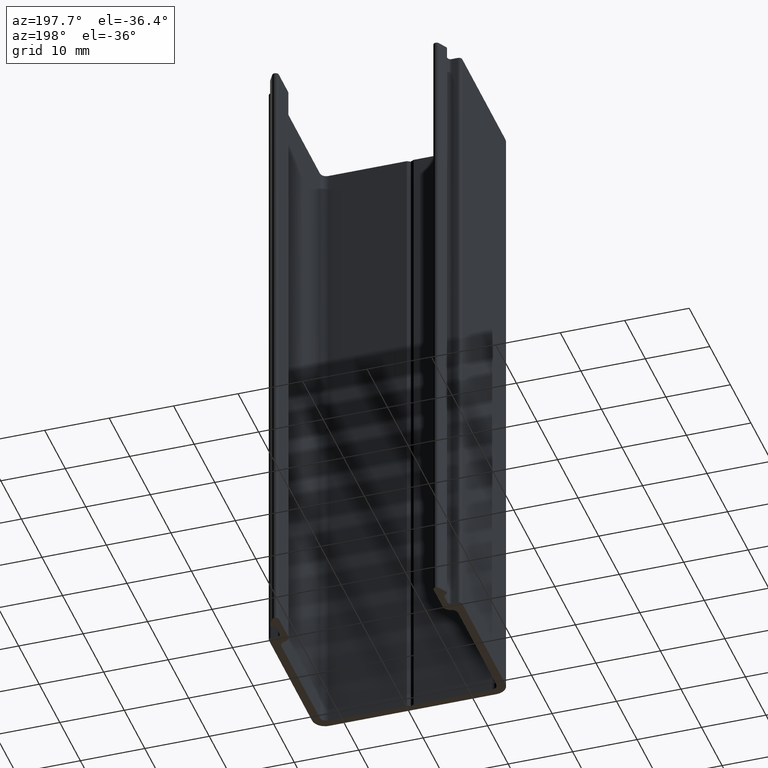
[diagram: clean part render]
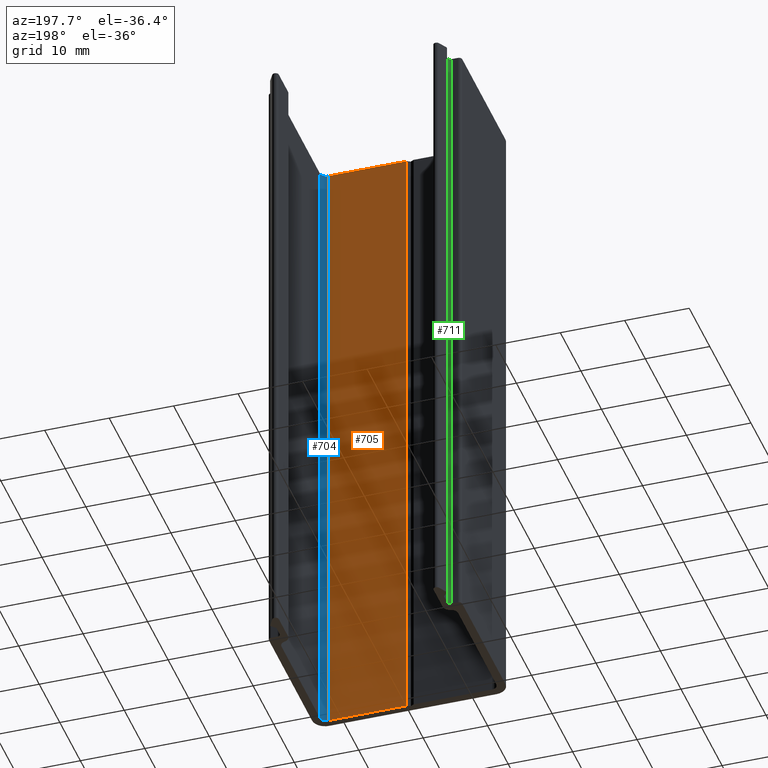
[diagram: same view with three faces highlighted in distinct colors, each labeled with its STEP entity id]
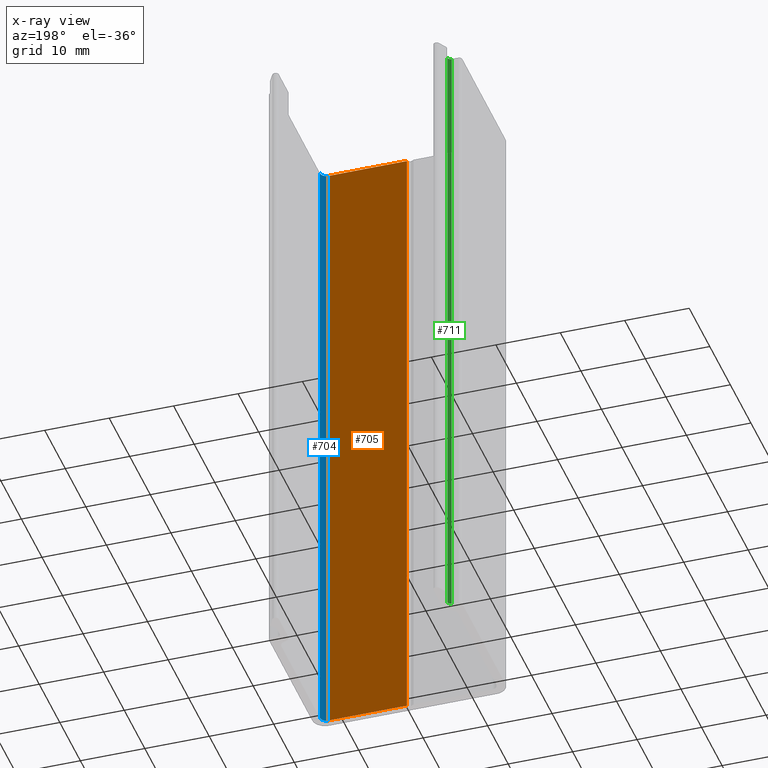
[diagram: x-ray of the same camera — body ghosted, the three highlighted faces saturated]
A machine part, auxiliary view with three faces highlighted in distinct colors.
The next image is the same camera in x-ray (body ghosted, the three faces saturated) — at least one of them is partly hidden behind the body in this view.
Their STEP definitions:

[orange] entity #705 — the highlighted planar face has unit normal (0, 1, 0).
#79=FACE_OUTER_BOUND('',#116,.T.);
#116=EDGE_LOOP('',(#522,#523,#524,#525));
#169=LINE('',#1109,#242);
#170=LINE('',#1112,#243);
#171=LINE('',#1114,#244);
#172=LINE('',#1115,#245);
#242=VECTOR('',#895,100.);
#243=VECTOR('',#898,12.1798805522346);
#244=VECTOR('',#899,12.1798805522346);
#245=VECTOR('',#900,100.);
#315=VERTEX_POINT('',#1105);
#316=VERTEX_POINT('',#1107);
#317=VERTEX_POINT('',#1111);
#318=VERTEX_POINT('',#1113);
#401=EDGE_CURVE('',#315,#316,#169,.T.);
#402=EDGE_CURVE('',#315,#317,#170,.T.);
#403=EDGE_CURVE('',#318,#316,#171,.T.);
#404=EDGE_CURVE('',#317,#318,#172,.T.);
#522=ORIENTED_EDGE('',*,*,#402,.F.);
#523=ORIENTED_EDGE('',*,*,#401,.T.);
#524=ORIENTED_EDGE('',*,*,#403,.F.);
#525=ORIENTED_EDGE('',*,*,#404,.F.);
#676=PLANE('',#760);
#705=ADVANCED_FACE('',(#79),#676,.T.);
#760=AXIS2_PLACEMENT_3D('',#1110,#896,#897);
#895=DIRECTION('',(0.,0.,-1.));
#896=DIRECTION('center_axis',(5.83374141242904E-14,1.,0.));
#897=DIRECTION('ref_axis',(-1.,5.82645043323282E-14,0.));
#898=DIRECTION('',(-1.,5.83374141242904E-14,0.));
#899=DIRECTION('',(1.,-5.83374141242904E-14,0.));
#900=DIRECTION('',(0.,0.,-1.));
#1105=CARTESIAN_POINT('',(12.699689254774,-13.7006513243402,100.));
#1107=CARTESIAN_POINT('',(12.699689254774,-13.7006513243402,0.));
#1109=CARTESIAN_POINT('',(12.699689254774,-13.7006513243402,0.));
#1110=CARTESIAN_POINT('Origin',(12.699689254774,-13.7006513243402,0.));
#1111=CARTESIAN_POINT('',(0.519808702539413,-13.7006513243395,100.));
#1112=CARTESIAN_POINT('',(6.3498446273866,-13.7006513243398,100.));
#1113=CARTESIAN_POINT('',(0.519808702539413,-13.7006513243395,0.));
#1114=CARTESIAN_POINT('',(6.3498446273866,-13.7006513243398,0.));
#1115=CARTESIAN_POINT('',(0.519808702539413,-13.7006513243395,0.));

[blue] entity #704 — the highlighted cylindrical surface (edge-blend (fillet) strip) has radius 1 mm, axis along (0, 0, 1).
#29=CIRCLE('',#758,1.00000000000018);
#30=CIRCLE('',#759,1.00000000000018);
#54=CYLINDRICAL_SURFACE('',#757,1.00000000000018);
#78=FACE_OUTER_BOUND('',#115,.T.);
#115=EDGE_LOOP('',(#518,#519,#520,#521));
#168=LINE('',#1103,#241);
#169=LINE('',#1109,#242);
#241=VECTOR('',#888,100.);
#242=VECTOR('',#895,100.);
#313=VERTEX_POINT('',#1099);
#314=VERTEX_POINT('',#1101);
#315=VERTEX_POINT('',#1105);
#316=VERTEX_POINT('',#1107);
#398=EDGE_CURVE('',#313,#314,#168,.T.);
#399=EDGE_CURVE('',#313,#315,#29,.T.);
#400=EDGE_CURVE('',#316,#314,#30,.T.);
#401=EDGE_CURVE('',#315,#316,#169,.T.);
#518=ORIENTED_EDGE('',*,*,#399,.F.);
#519=ORIENTED_EDGE('',*,*,#398,.T.);
#520=ORIENTED_EDGE('',*,*,#400,.F.);
#521=ORIENTED_EDGE('',*,*,#401,.F.);
#704=ADVANCED_FACE('',(#78),#54,.F.);
#757=AXIS2_PLACEMENT_3D('',#1104,#889,#890);
#758=AXIS2_PLACEMENT_3D('',#1106,#891,#892);
#759=AXIS2_PLACEMENT_3D('',#1108,#893,#894);
#888=DIRECTION('',(0.,0.,-1.));
#889=DIRECTION('center_axis',(0.,0.,1.));
#890=DIRECTION('ref_axis',(-5.77315972804976E-14,-1.,0.));
#891=DIRECTION('center_axis',(0.,0.,-1.));
#892=DIRECTION('ref_axis',(-5.77315972804976E-14,-1.,0.));
#893=DIRECTION('center_axis',(0.,0.,1.));
#894=DIRECTION('ref_axis',(-5.77315972804976E-14,-1.,0.));
#895=DIRECTION('',(0.,0.,-1.));
#1099=CARTESIAN_POINT('',(13.6996892547742,-12.7006513243401,100.));
#1101=CARTESIAN_POINT('',(13.6996892547742,-12.7006513243401,0.));
#1103=CARTESIAN_POINT('',(13.6996892547742,-12.7006513243401,0.));
#1104=CARTESIAN_POINT('Origin',(12.6996892547741,-12.70065132434,0.));
#1105=CARTESIAN_POINT('',(12.699689254774,-13.7006513243402,100.));
#1106=CARTESIAN_POINT('Origin',(12.6996892547741,-12.70065132434,100.));
#1107=CARTESIAN_POINT('',(12.699689254774,-13.7006513243402,0.));
#1108=CARTESIAN_POINT('Origin',(12.6996892547741,-12.70065132434,0.));
#1109=CARTESIAN_POINT('',(12.699689254774,-13.7006513243402,0.));

[green] entity #711 — the highlighted cylindrical surface (edge-blend (fillet) strip) has radius 0.5001 mm, axis along (0, 0, 1).
#35=CIRCLE('',#771,0.500103581741702);
#36=CIRCLE('',#772,0.500103581741702);
#57=CYLINDRICAL_SURFACE('',#770,0.500103581741702);
#85=FACE_OUTER_BOUND('',#122,.T.);
#122=EDGE_LOOP('',(#546,#547,#548,#549));
#182=LINE('',#1144,#255);
#184=LINE('',#1150,#257);
#255=VECTOR('',#928,100.);
#257=VECTOR('',#934,100.);
#327=VERTEX_POINT('',#1141);
#328=VERTEX_POINT('',#1143);
#329=VERTEX_POINT('',#1147);
#330=VERTEX_POINT('',#1149);
#418=EDGE_CURVE('',#327,#328,#182,.T.);
#420=EDGE_CURVE('',#329,#327,#35,.T.);
#421=EDGE_CURVE('',#329,#330,#184,.T.);
#422=EDGE_CURVE('',#328,#330,#36,.T.);
#546=ORIENTED_EDGE('',*,*,#420,.F.);
#547=ORIENTED_EDGE('',*,*,#421,.T.);
#548=ORIENTED_EDGE('',*,*,#422,.F.);
#549=ORIENTED_EDGE('',*,*,#418,.F.);
#711=ADVANCED_FACE('',(#85),#57,.F.);
#770=AXIS2_PLACEMENT_3D('',#1146,#930,#931);
#771=AXIS2_PLACEMENT_3D('',#1148,#932,#933);
#772=AXIS2_PLACEMENT_3D('',#1151,#935,#936);
#928=DIRECTION('',(0.,0.,-1.));
#930=DIRECTION('center_axis',(0.,0.,1.));
#931=DIRECTION('ref_axis',(-4.43997229837308E-14,-1.,0.));
#932=DIRECTION('center_axis',(0.,0.,-1.));
#933=DIRECTION('ref_axis',(-4.43997229837308E-14,-1.,0.));
#934=DIRECTION('',(0.,0.,-1.));
#935=DIRECTION('center_axis',(0.,0.,1.));
#936=DIRECTION('ref_axis',(-4.43997229837308E-14,-1.,0.));
#1141=CARTESIAN_POINT('',(-13.500310745224,8.50010358174267,100.));
#1143=CARTESIAN_POINT('',(-13.500310745224,8.50010358174267,0.));
#1144=CARTESIAN_POINT('',(-13.500310745224,8.50010358174267,0.));
#1146=CARTESIAN_POINT('Origin',(-13.5003107452239,9.00020716348438,0.));
#1147=CARTESIAN_POINT('',(-13.0002071634822,9.00020716348435,100.));
#1148=CARTESIAN_POINT('Origin',(-13.5003107452239,9.00020716348438,100.));
#1149=CARTESIAN_POINT('',(-13.0002071634822,9.00020716348435,0.));
#1150=CARTESIAN_POINT('',(-13.0002071634822,9.00020716348435,0.));
#1151=CARTESIAN_POINT('Origin',(-13.5003107452239,9.00020716348438,0.));